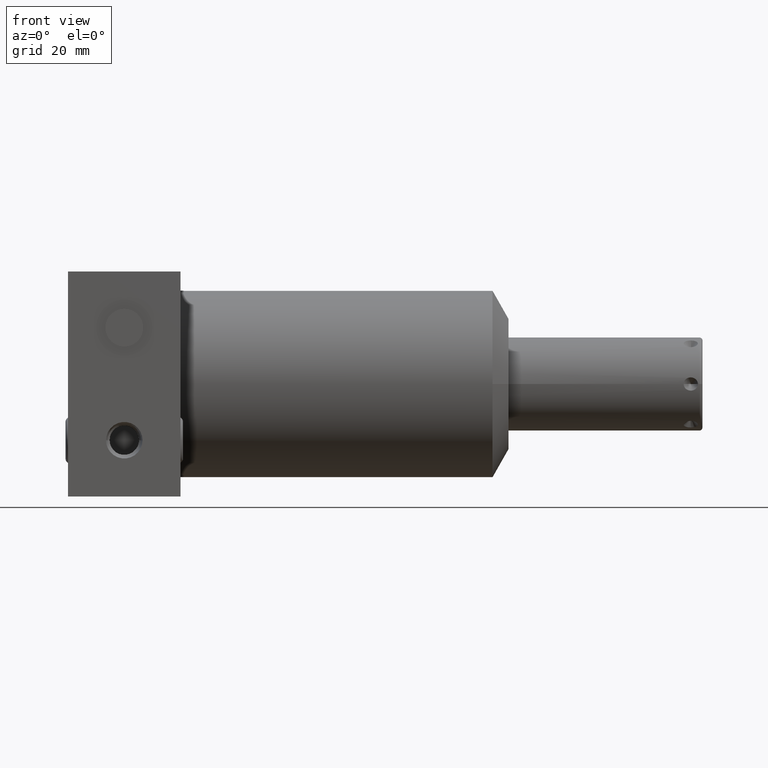
[diagram: clean part render]
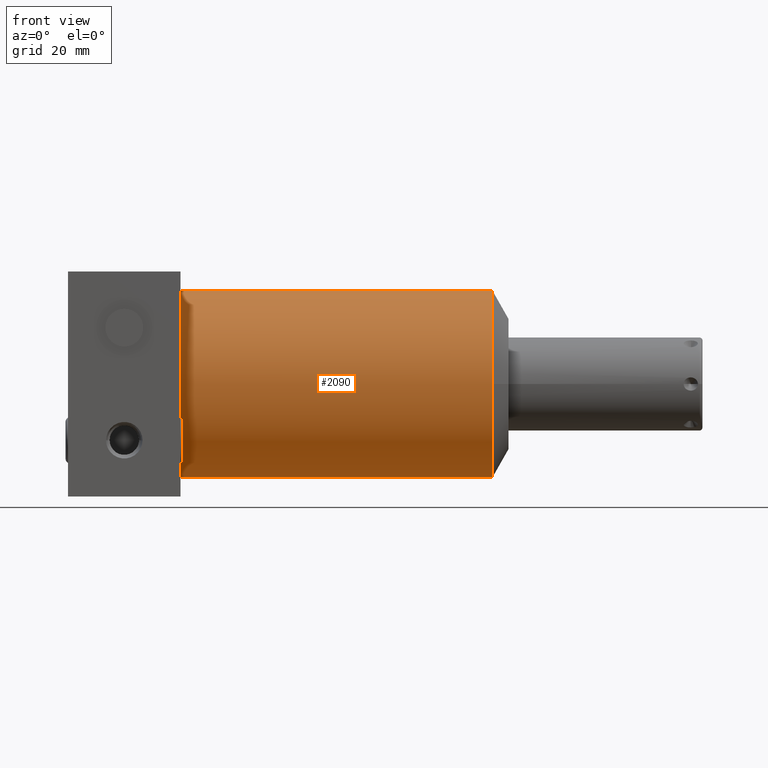
[diagram: same view with one face highlighted and labeled with its STEP entity id]
A machine part, front view. The second image highlights one B-rep face of the part: STEP entity #2090.
In plain terms, the highlighted cylindrical surface (partial cylindrical patch) has radius 31.5595 mm, axis along (1, 0, 0).
Its self-contained STEP definition (entity closure, byte-faithful):
#113=CARTESIAN_POINT('',(0.E0,0.E0,0.E0));
#114=DIRECTION('',(1.E0,0.E0,0.E0));
#115=DIRECTION('',(0.E0,0.E0,1.E0));
#116=AXIS2_PLACEMENT_3D('',#113,#114,#115);
#241=DIRECTION('',(-1.E0,0.E0,0.E0));
#242=VECTOR('',#241,4.162823776073E0);
#243=CARTESIAN_POINT('',(4.162823776073E0,0.E0,-1.2425E0));
#244=LINE('',#243,#242);
#256=CARTESIAN_POINT('',(4.162823776073E0,0.E0,0.E0));
#257=DIRECTION('',(1.E0,0.E0,0.E0));
#258=DIRECTION('',(0.E0,-1.E0,0.E0));
#259=AXIS2_PLACEMENT_3D('',#256,#257,#258);
#303=CARTESIAN_POINT('',(4.162823776073E0,0.E0,0.E0));
#304=DIRECTION('',(1.E0,0.E0,0.E0));
#305=DIRECTION('',(0.E0,0.E0,1.E0));
#306=AXIS2_PLACEMENT_3D('',#303,#304,#305);
#326=DIRECTION('',(-1.E0,0.E0,0.E0));
#327=VECTOR('',#326,4.162823776073E0);
#328=CARTESIAN_POINT('',(4.162823776073E0,0.E0,1.2425E0));
#329=LINE('',#328,#327);
#1694=CARTESIAN_POINT('',(0.E0,0.E0,1.2425E0));
#1695=CARTESIAN_POINT('',(0.E0,0.E0,-1.2425E0));
#1696=VERTEX_POINT('',#1694);
#1697=VERTEX_POINT('',#1695);
#1718=CARTESIAN_POINT('',(4.162823776073E0,-1.2425E0,0.E0));
#1719=CARTESIAN_POINT('',(4.162823776073E0,0.E0,-1.2425E0));
#1720=VERTEX_POINT('',#1718);
#1721=VERTEX_POINT('',#1719);
#1722=CARTESIAN_POINT('',(4.162823776073E0,0.E0,1.2425E0));
#1723=VERTEX_POINT('',#1722);
#2074=CARTESIAN_POINT('',(0.E0,0.E0,0.E0));
#2075=DIRECTION('',(1.E0,0.E0,0.E0));
#2076=DIRECTION('',(0.E0,0.E0,-1.E0));
#2077=AXIS2_PLACEMENT_3D('',#2074,#2075,#2076);
#2078=CYLINDRICAL_SURFACE('',#2077,1.2425E0);
#2080=ORIENTED_EDGE('',*,*,#2079,.T.);
#2082=ORIENTED_EDGE('',*,*,#2081,.T.);
#2083=ORIENTED_EDGE('',*,*,#2025,.F.);
#2085=ORIENTED_EDGE('',*,*,#2084,.F.);
#2087=ORIENTED_EDGE('',*,*,#2086,.T.);
#2088=EDGE_LOOP('',(#2080,#2082,#2083,#2085,#2087));
#2089=FACE_OUTER_BOUND('',#2088,.F.);
#117=CIRCLE('',#116,1.2425E0);
#260=CIRCLE('',#259,1.2425E0);
#307=CIRCLE('',#306,1.2425E0);
#2025=EDGE_CURVE('',#1696,#1697,#117,.T.);
#2079=EDGE_CURVE('',#1720,#1721,#260,.T.);
#2081=EDGE_CURVE('',#1721,#1697,#244,.T.);
#2084=EDGE_CURVE('',#1723,#1696,#329,.T.);
#2086=EDGE_CURVE('',#1723,#1720,#307,.T.);
#2090=ADVANCED_FACE('',(#2089),#2078,.T.);